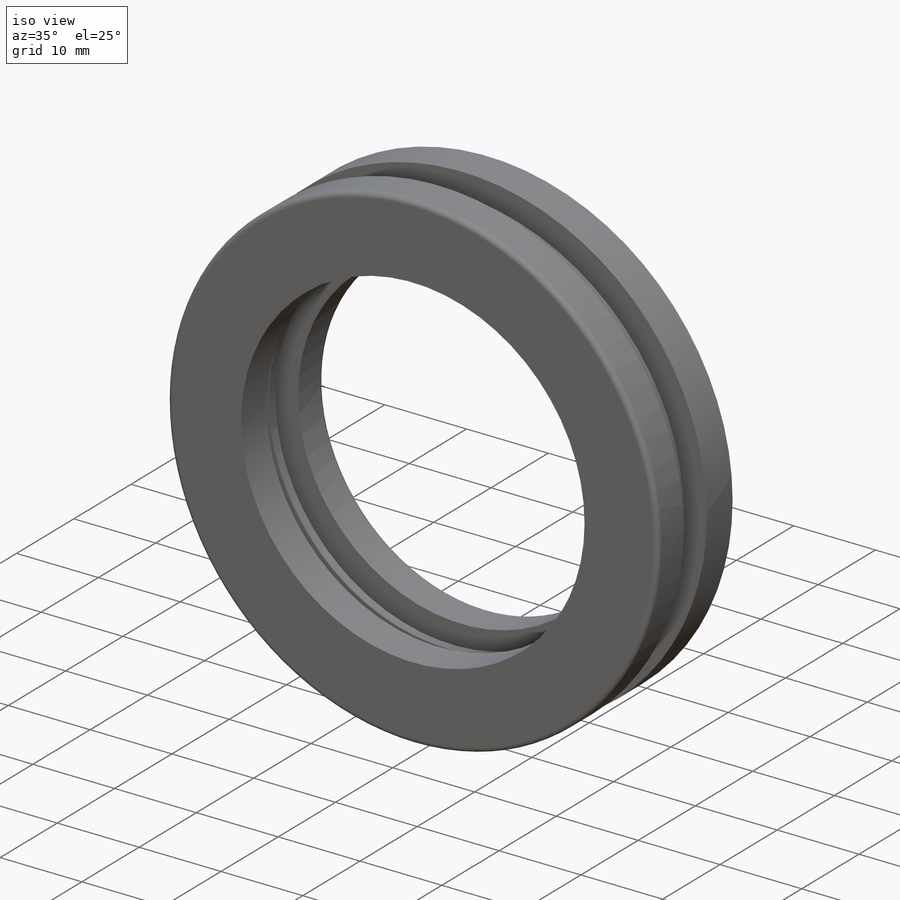
[diagram: iso view]
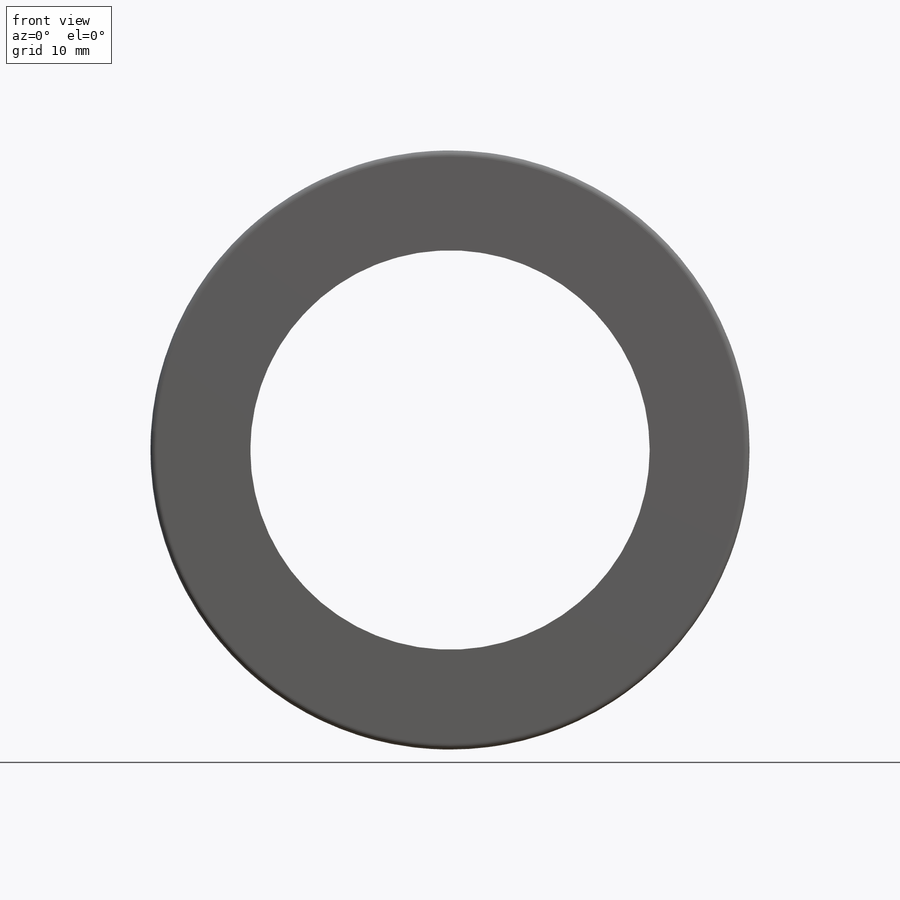
[diagram: front view]
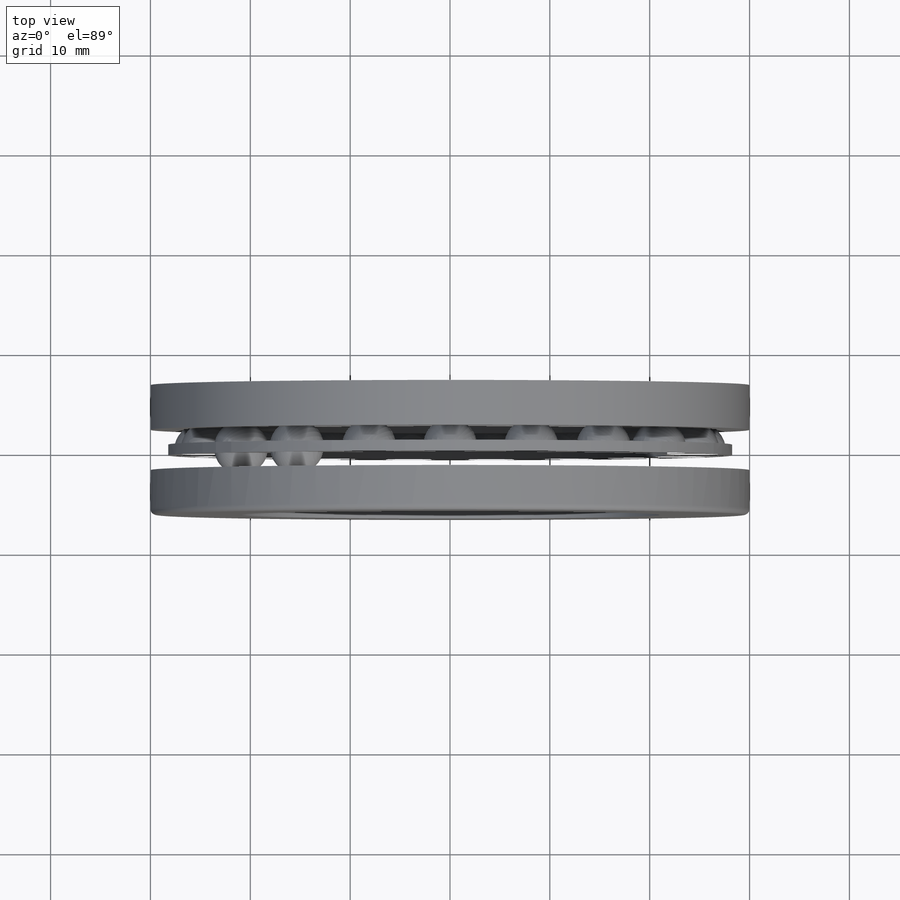
[diagram: top view]
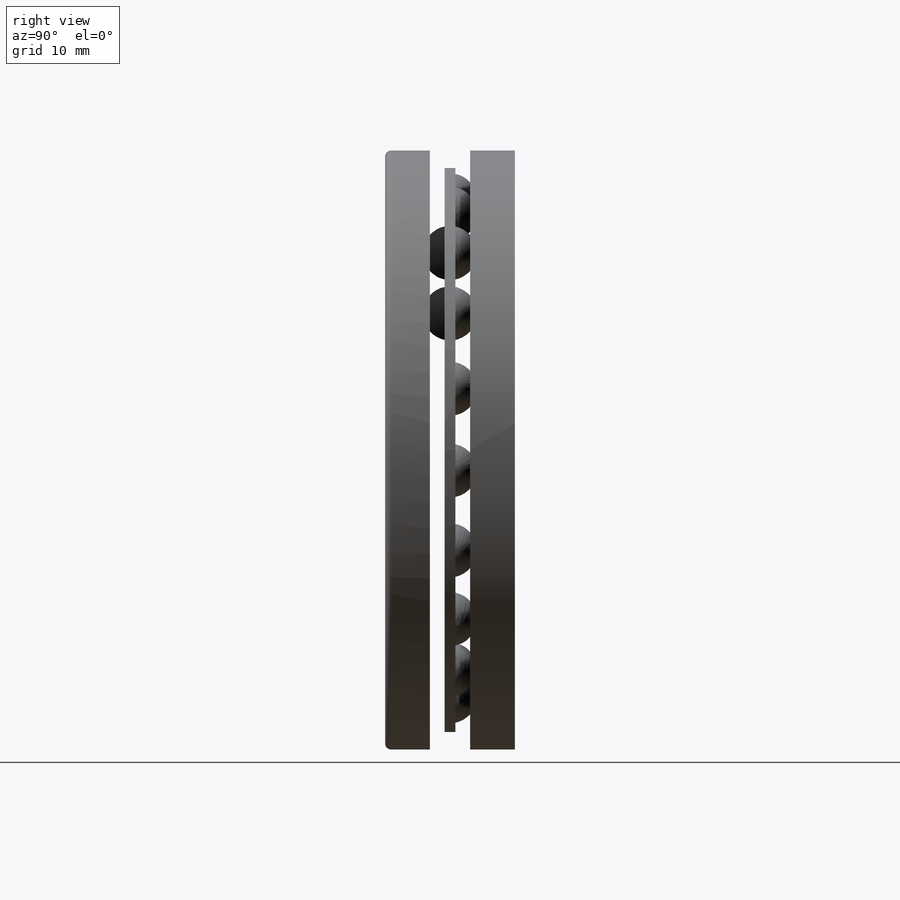
[diagram: right view]
SOLIDWORKS PART (.sldprt)
format: sldprt  version: not decoded by parser v0  size: 857,600 bytes
history: native  units: mm
features: sketch x5, revolve x5, material x1, fillet x1, pattern_circular x1 (+12 scaffold rows collapsed)
feature tree (25):
  scaffold x12  (default folders/planes/origin — collapsed)
  material  "Material <sin especificar>"
  sketch  "BaseSke"  dims[c1.Ball_diameter=~6.503404mm c2.Ball_diameter=~5.416667mm c2.Bearing_Thickness=9.0mm c2.Diameter2=60.0mm c2.Bearing_Inside_Diameter=40.0mm c2.D1=25.0mm c2.D2=6.5mm c3.Bearing_Thickness=13.0mm c3.Diameter1=42.0mm c3.Bearing_Outside_Diameter=60.0mm]
  revolve  "Ball"  Angle=360deg
  sketch  "InnerRaceSke"  dims[D1=~5.396667mm D2=~4.482759mm]
  revolve  "InnerRace"  Angle=360deg
  sketch  "OuterRaceSke"  dims[D1=~5.396667mm D2=~4.482759mm]
  revolve  "OuterRace"  Angle=360deg
  fillet  "Fillet1"  Radius=0.6mm Fillet_radius=0.6mm
  pattern_circular  "CirPatternBall"  Count=19 Angle=360deg
  sketch  "CageSke"  dims[D1=~1.083333mm D2=6.5mm]
  revolve  "Cage"  Angle=360deg
  sketch  "SimplifiedSke"
  revolve  "Simplified"  Angle=360deg
decode coverage: 11 of 12 modeling features carry decoded parameters
note: ~ marks probable driven/reference dimensions
note: suppression state not decoded; provenance and decode notes live in map.json
